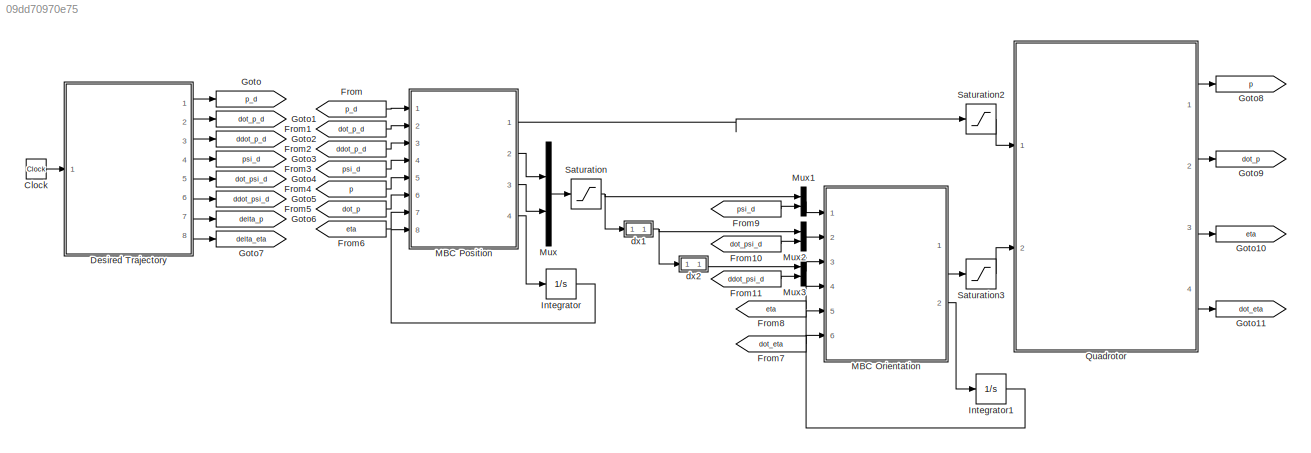
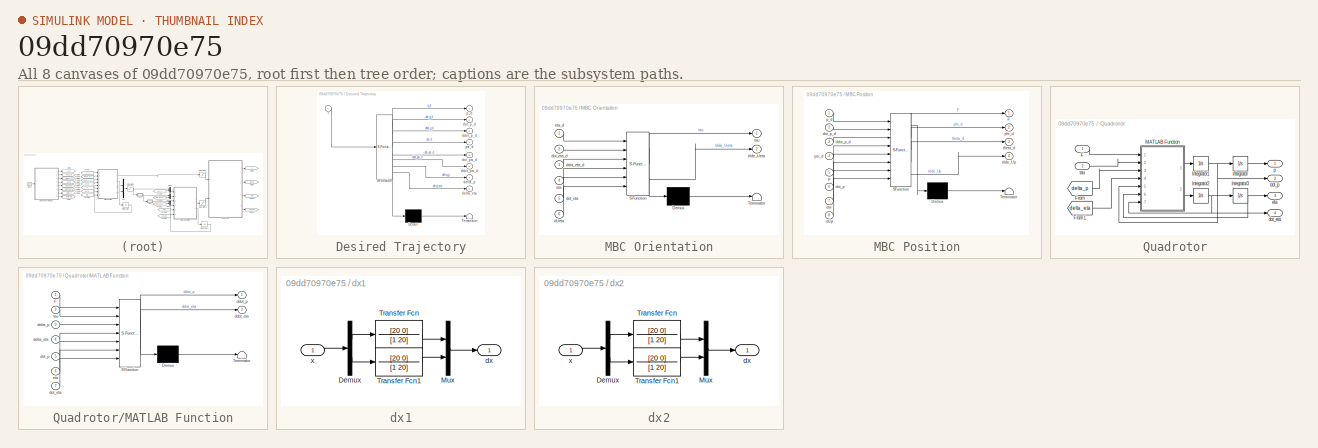
[diagram: thumbnail index - all 8 canvases of the model, root first then tree order]
MODEL slx_09dd70970e75
KIND model
CONFIG AbsTol = auto
CONFIG EnableMultiTasking = off
CONFIG FixedStep = 1e-3
CONFIG MaxStep = auto
CONFIG MinStep = auto
CONFIG RelTol = 1e-3
CONFIG SampleTimeConstraint = Unconstrained
CONFIG SolverName = ode4
CONFIG StartTime = 0.0
CONFIG StopTime = 100.0
BLOCK [Clock] Clock
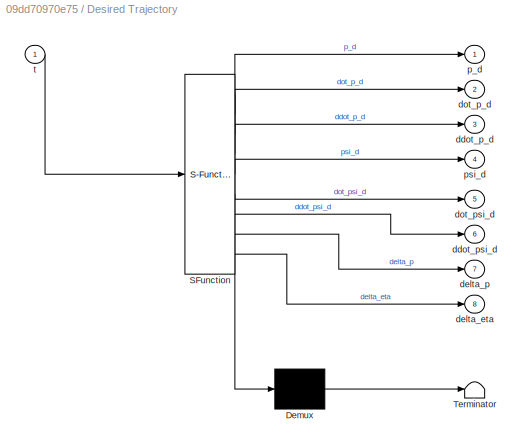
BLOCK [SubSystem] Desired Trajectory
  ErrorFcn = Stateflow.Translate.translate
  PermitHierarchicalResolution = ExplicitOnly
  Ports = [1, 8]
  RequestExecContextInheritance = off
  SFBlockType = MATLAB Function
  TreatAsAtomicUnit = on
BLOCK [Demux] Desired Trajectory/ Demux 
  Outputs = 1
  Ports = [1, 1]
BLOCK [S-Function] Desired Trajectory/ SFunction 
  EnableBusSupport = on
  FunctionName = sf_sfun
  PortCounts = [1 9]
  Ports = [1, 9]
  SFcnIsStateOwnerBlock = off
  SFunctionDeploymentMode = off
  Tag = Stateflow S-Function 4
BLOCK [Terminator] Desired Trajectory/ Terminator 
BLOCK [Outport] Desired Trajectory/ddot_p_d
  Port = 3
BLOCK [Outport] Desired Trajectory/ddot_psi_d
  Port = 6
BLOCK [Outport] Desired Trajectory/delta_eta
  Port = 8
BLOCK [Outport] Desired Trajectory/delta_p
  Port = 7
BLOCK [Outport] Desired Trajectory/dot_p_d
  Port = 2
BLOCK [Outport] Desired Trajectory/dot_psi_d
  Port = 5
BLOCK [Outport] Desired Trajectory/p_d
BLOCK [Outport] Desired Trajectory/psi_d
  Port = 4
BLOCK [Inport] Desired Trajectory/t
BLOCK [From] From
  GotoTag = p_d
  TagVisibility = global
BLOCK [From] From1
  GotoTag = dot_p_d
  TagVisibility = global
BLOCK [From] From10
  GotoTag = dot_psi_d
  TagVisibility = global
BLOCK [From] From11
  GotoTag = ddot_psi_d
  TagVisibility = global
BLOCK [From] From2
  GotoTag = ddot_p_d
  TagVisibility = global
BLOCK [From] From3
  GotoTag = psi_d
  TagVisibility = global
BLOCK [From] From4
  GotoTag = p
  TagVisibility = global
BLOCK [From] From5
  GotoTag = dot_p
  TagVisibility = global
BLOCK [From] From6
  GotoTag = eta
  TagVisibility = global
BLOCK [From] From7
  GotoTag = dot_eta
  TagVisibility = global
BLOCK [From] From8
  GotoTag = eta
  TagVisibility = global
BLOCK [From] From9
  GotoTag = psi_d
  TagVisibility = global
BLOCK [Goto] Goto
  GotoTag = p_d
  TagVisibility = global
BLOCK [Goto] Goto1
  GotoTag = dot_p_d
  TagVisibility = global
BLOCK [Goto] Goto10
  GotoTag = eta
  TagVisibility = global
BLOCK [Goto] Goto11
  GotoTag = dot_eta
  TagVisibility = global
BLOCK [Goto] Goto2
  GotoTag = ddot_p_d
  TagVisibility = global
BLOCK [Goto] Goto3
  GotoTag = psi_d
  TagVisibility = global
BLOCK [Goto] Goto4
  GotoTag = dot_psi_d
  TagVisibility = global
BLOCK [Goto] Goto5
  GotoTag = ddot_psi_d
  TagVisibility = global
BLOCK [Goto] Goto6
  GotoTag = delta_p
  TagVisibility = global
BLOCK [Goto] Goto7
  GotoTag = delta_eta
  TagVisibility = global
BLOCK [Goto] Goto8
  GotoTag = p
  TagVisibility = global
BLOCK [Goto] Goto9
  GotoTag = dot_p
  TagVisibility = global
BLOCK [Integrator] Integrator
  InitialCondition = [0;0;0]
  Ports = [1, 1]
BLOCK [Integrator] Integrator1
  InitialCondition = [0;0;0]
  Ports = [1, 1]
BLOCK [SubSystem] MBC Orientation
  ErrorFcn = Stateflow.Translate.translate
  PermitHierarchicalResolution = ExplicitOnly
  Ports = [6, 2]
  RequestExecContextInheritance = off
  SFBlockType = MATLAB Function
  TreatAsAtomicUnit = on
BLOCK [Demux] MBC Orientation/ Demux 
  Outputs = 1
  Ports = [1, 1]
BLOCK [S-Function] MBC Orientation/ SFunction 
  EnableBusSupport = on
  FunctionName = sf_sfun
  PortCounts = [6 3]
  Ports = [6, 3]
  SFcnIsStateOwnerBlock = off
  SFunctionDeploymentMode = off
  Tag = Stateflow S-Function 1
BLOCK [Terminator] MBC Orientation/ Terminator 
BLOCK [Inport] MBC Orientation/ddot_eta_d
  Port = 3
BLOCK [Inport] MBC Orientation/dot_eta
  Port = 5
BLOCK [Inport] MBC Orientation/dot_eta_d
  Port = 2
BLOCK [Inport] MBC Orientation/eta
  Port = 4
BLOCK [Inport] MBC Orientation/eta_d
BLOCK [Inport] MBC Orientation/itUeta
  Port = 6
BLOCK [Outport] MBC Orientation/tau
BLOCK [Outport] MBC Orientation/tilde_Ueta
  Port = 2
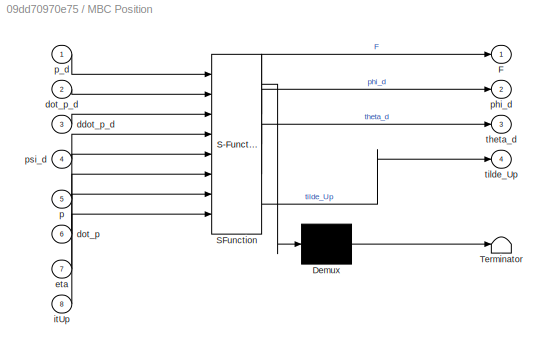
BLOCK [SubSystem] MBC Position
  ErrorFcn = Stateflow.Translate.translate
  PermitHierarchicalResolution = ExplicitOnly
  Ports = [8, 4]
  RequestExecContextInheritance = off
  SFBlockType = MATLAB Function
  TreatAsAtomicUnit = on
BLOCK [Demux] MBC Position/ Demux 
  Outputs = 1
  Ports = [1, 1]
BLOCK [S-Function] MBC Position/ SFunction 
  EnableBusSupport = on
  FunctionName = sf_sfun
  PortCounts = [8 5]
  Ports = [8, 5]
  SFcnIsStateOwnerBlock = off
  SFunctionDeploymentMode = off
  Tag = Stateflow S-Function 3
BLOCK [Terminator] MBC Position/ Terminator 
BLOCK [Outport] MBC Position/F
BLOCK [Inport] MBC Position/ddot_p_d
  Port = 3
BLOCK [Inport] MBC Position/dot_p
  Port = 6
BLOCK [Inport] MBC Position/dot_p_d
  Port = 2
BLOCK [Inport] MBC Position/eta
  Port = 7
BLOCK [Inport] MBC Position/itUp
  Port = 8
BLOCK [Inport] MBC Position/p
  Port = 5
BLOCK [Inport] MBC Position/p_d
BLOCK [Outport] MBC Position/phi_d
  Port = 2
BLOCK [Inport] MBC Position/psi_d
  Port = 4
BLOCK [Outport] MBC Position/theta_d
  Port = 3
BLOCK [Outport] MBC Position/tilde_Up
  Port = 4
BLOCK [Mux] Mux
  DisplayOption = bar
  Inputs = 2
  Ports = [2, 1]
BLOCK [Mux] Mux1
  DisplayOption = bar
  Inputs = 2
  Ports = [2, 1]
BLOCK [Mux] Mux2
  DisplayOption = bar
  Inputs = 2
  Ports = [2, 1]
BLOCK [Mux] Mux3
  DisplayOption = bar
  Inputs = 2
  Ports = [2, 1]
BLOCK [SubSystem] Quadrotor
  Ports = [2, 4]
  RequestExecContextInheritance = off
BLOCK [Inport] Quadrotor/F
BLOCK [From] Quadrotor/From
  GotoTag = delta_p
  TagVisibility = global
BLOCK [From] Quadrotor/From1
  GotoTag = delta_eta
  TagVisibility = global
BLOCK [Integrator] Quadrotor/Integrator
  InitialCondition = [0;0;0.3]
  LimitOutput = on
  LowerSaturationLimit = [-inf;-inf;0.3]
  Ports = [1, 1]
  UpperSaturationLimit = [inf;inf;inf]
BLOCK [Integrator] Quadrotor/Integrator1
  InitialCondition = [0;0;0]
  Ports = [1, 1]
BLOCK [Integrator] Quadrotor/Integrator2
  InitialCondition = [0;0;0]
  Ports = [1, 1]
BLOCK [Integrator] Quadrotor/Integrator3
  InitialCondition = [0;0;0]
  LimitOutput = on
  LowerSaturationLimit = [-pi/2; -pi/2; -inf]
  Ports = [1, 1]
  UpperSaturationLimit = [pi/2; pi/2; inf]
BLOCK [SubSystem] Quadrotor/MATLAB Function
  ErrorFcn = Stateflow.Translate.translate
  PermitHierarchicalResolution = ExplicitOnly
  Ports = [7, 2]
  RequestExecContextInheritance = off
  SFBlockType = MATLAB Function
  TreatAsAtomicUnit = on
BLOCK [Demux] Quadrotor/MATLAB Function/ Demux 
  Outputs = 1
  Ports = [1, 1]
BLOCK [S-Function] Quadrotor/MATLAB Function/ SFunction 
  EnableBusSupport = on
  FunctionName = sf_sfun
  PortCounts = [7 3]
  Ports = [7, 3]
  SFcnIsStateOwnerBlock = off
  SFunctionDeploymentMode = off
  Tag = Stateflow S-Function 2
BLOCK [Terminator] Quadrotor/MATLAB Function/ Terminator 
BLOCK [Inport] Quadrotor/MATLAB Function/F
BLOCK [Outport] Quadrotor/MATLAB Function/ddot_eta
  Port = 2
BLOCK [Outport] Quadrotor/MATLAB Function/ddot_p
BLOCK [Inport] Quadrotor/MATLAB Function/delta_eta
  Port = 4
BLOCK [Inport] Quadrotor/MATLAB Function/delta_p
  Port = 3
BLOCK [Inport] Quadrotor/MATLAB Function/dot_eta
  Port = 7
BLOCK [Inport] Quadrotor/MATLAB Function/dot_p
  Port = 5
BLOCK [Inport] Quadrotor/MATLAB Function/eta
  Port = 6
BLOCK [Inport] Quadrotor/MATLAB Function/tau
  Port = 2
BLOCK [Outport] Quadrotor/dot_eta
  Port = 4
BLOCK [Outport] Quadrotor/dot_p
  Port = 2
BLOCK [Outport] Quadrotor/eta
  Port = 3
BLOCK [Outport] Quadrotor/p
BLOCK [Inport] Quadrotor/tau
  Port = 2
BLOCK [Saturate] Saturation
  LowerLimit = -20*pi/180
  UpperLimit = 20*pi/180
BLOCK [Saturate] Saturation2
  LowerLimit = 0
  UpperLimit = 34.4
BLOCK [Saturate] Saturation3
  LowerLimit = -1.72
  UpperLimit = 1.72
BLOCK [SubSystem] dx1
  Ports = [1, 1]
  RequestExecContextInheritance = off
BLOCK [Demux] dx1/Demux
  Outputs = 2
  Ports = [1, 2]
BLOCK [Mux] dx1/Mux
  DisplayOption = bar
  Inputs = 2
  Ports = [2, 1]
BLOCK [TransferFcn] dx1/Transfer Fcn
  Denominator = [1 20]
  Numerator = [20 0]
BLOCK [TransferFcn] dx1/Transfer Fcn1
  Denominator = [1 20]
  Numerator = [20 0]
BLOCK [Outport] dx1/dx
BLOCK [Inport] dx1/x
  NameLocation = top
BLOCK [SubSystem] dx2
  Ports = [1, 1]
  RequestExecContextInheritance = off
BLOCK [Demux] dx2/Demux
  Outputs = 2
  Ports = [1, 2]
BLOCK [Mux] dx2/Mux
  DisplayOption = bar
  Inputs = 2
  Ports = [2, 1]
BLOCK [TransferFcn] dx2/Transfer Fcn
  Denominator = [1 20]
  Numerator = [20 0]
BLOCK [TransferFcn] dx2/Transfer Fcn1
  Denominator = [1 20]
  Numerator = [20 0]
BLOCK [Outport] dx2/dx
BLOCK [Inport] dx2/x
  NameLocation = top
LINE Clock:1 -> Desired Trajectory:1
LINE Desired Trajectory:1 -> Goto:1
LINE Desired Trajectory:2 -> Goto1:1
LINE Desired Trajectory:3 -> Goto2:1
LINE Desired Trajectory:4 -> Goto3:1
LINE Desired Trajectory:5 -> Goto4:1
LINE Desired Trajectory:6 -> Goto5:1
LINE Desired Trajectory:7 -> Goto6:1
LINE Desired Trajectory:8 -> Goto7:1
LINE From10:1 -> Mux2:2
LINE From11:1 -> Mux3:2
LINE From1:1 -> MBC Position:2
LINE From2:1 -> MBC Position:3
LINE From3:1 -> MBC Position:4
LINE From4:1 -> MBC Position:5
LINE From5:1 -> MBC Position:6
LINE From6:1 -> MBC Position:7
LINE From7:1 -> MBC Orientation:5
LINE From8:1 -> MBC Orientation:4
LINE From9:1 -> Mux1:2
LINE From:1 -> MBC Position:1
LINE Integrator1:1 -> MBC Orientation:6
LINE Integrator:1 -> MBC Position:8
LINE MBC Orientation:1 -> Saturation3:1
LINE MBC Orientation:2 -> Integrator1:1
LINE MBC Position:1 -> Saturation2:1
LINE MBC Position:2 -> Mux:1
LINE MBC Position:3 -> Mux:2
LINE MBC Position:4 -> Integrator:1
LINE Mux1:1 -> MBC Orientation:1
LINE Mux2:1 -> MBC Orientation:2
LINE Mux3:1 -> MBC Orientation:3
LINE Mux:1 -> Saturation:1
LINE Quadrotor/F:1 -> Quadrotor/MATLAB Function:1
LINE Quadrotor/From1:1 -> Quadrotor/MATLAB Function:4
LINE Quadrotor/From:1 -> Quadrotor/MATLAB Function:3
NET Quadrotor/Integrator1:1 -> Quadrotor/Integrator:1, Quadrotor/MATLAB Function:5, Quadrotor/dot_p:1
NET Quadrotor/Integrator2:1 -> Quadrotor/Integrator3:1, Quadrotor/MATLAB Function:7, Quadrotor/dot_eta:1
NET Quadrotor/Integrator3:1 -> Quadrotor/MATLAB Function:6, Quadrotor/eta:1
LINE Quadrotor/Integrator:1 -> Quadrotor/p:1
LINE Quadrotor/MATLAB Function:1 -> Quadrotor/Integrator1:1
LINE Quadrotor/MATLAB Function:2 -> Quadrotor/Integrator2:1
LINE Quadrotor/tau:1 -> Quadrotor/MATLAB Function:2
LINE Quadrotor:1 -> Goto8:1
LINE Quadrotor:2 -> Goto9:1
LINE Quadrotor:3 -> Goto10:1
LINE Quadrotor:4 -> Goto11:1
LINE Saturation2:1 -> Quadrotor:1
LINE Saturation3:1 -> Quadrotor:2
NET Saturation:1 -> Mux1:1, dx1:1
LINE dx1/Demux:1 -> dx1/Transfer Fcn:1
LINE dx1/Demux:2 -> dx1/Transfer Fcn1:1
LINE dx1/Mux:1 -> dx1/dx:1
LINE dx1/Transfer Fcn1:1 -> dx1/Mux:2
LINE dx1/Transfer Fcn:1 -> dx1/Mux:1
LINE dx1/x:1 -> dx1/Demux:1
NET dx1:1 -> Mux2:1, dx2:1
LINE dx2/Demux:1 -> dx2/Transfer Fcn:1
LINE dx2/Demux:2 -> dx2/Transfer Fcn1:1
LINE dx2/Mux:1 -> dx2/dx:1
LINE dx2/Transfer Fcn1:1 -> dx2/Mux:2
LINE dx2/Transfer Fcn:1 -> dx2/Mux:1
LINE dx2/x:1 -> dx2/Demux:1
LINE dx2:1 -> Mux3:1
note: NET lines group one-source signal fan-out (src -> all destinations, sorted); 1:1 wires keep LINE
CHART MBC Orientation states=1 transitions=1
  STATE_LABEL 'eML_blk_kernel()'
  STATE_LABEL 'SCRIPT:\nfunction [tau, tilde_Ueta] = fcn(eta_d, dot_eta_d, ddot_eta_d, eta, dot_eta, itUeta)\n\nphi     = eta(1);     theta = eta(2);\ndot_phi = dot_eta(1); dot_theta = dot_eta(2);\nIxx = 0.03; Iyy = 0.03; Izz = 0.04;\nd_phi = 0.002; d_theta = 0.002; d_psi = 0.004;\nI  = diag([Ixx Iyy Izz]);\nDn = diag([d_phi d_theta d_psi]);\n%% Gains\nK1eta = 2*diag([1 1 1]);\nK2eta = 0.001*diag([1 1 1]);\nK3eta = 5*diag([...<+1191ch>'
CHART Quadrotor/MATLAB Function states=1 transitions=1
  STATE_LABEL 'eML_blk_kernel()'
  STATE_LABEL 'SCRIPT:\nfunction [ddot_p, ddot_eta] = fcn(F, tau, delta_p, delta_eta, dot_p, eta, dot_eta)\n\nm  = 1.79;\ng  = 9.81;\nIxx = 0.03; Iyy = 0.03; Izz = 0.04;\ndx = 0.002; dy = 0.002; dz = 0.004;\nd_phi = 0.002; d_theta = 0.002; d_psi = 0.004;\nI  = diag([Ixx Iyy Izz]);\nDp = diag([dx dy dz]);\nDn = diag([d_phi d_theta d_psi]);\nVz = [0; 0; 1];\n\nphi     = eta(1);     theta     = eta(2);     psi = eta(3);\ndot_phi...<+1439ch>'
CHART MBC Position states=1 transitions=1
  STATE_LABEL 'eML_blk_kernel()'
  STATE_LABEL 'SCRIPT:\nfunction [F, phi_d, theta_d, tilde_Up] = fcn(p_d, dot_p_d, ddot_p_d, psi_d, p, dot_p, eta, itUp)\nm  = 0.7*1.79;\ng  = 9.81;\ngz = [0; 0; g];\ndx = 0.002; dy = 0.002; dz = 0.004;\nDp = diag([dx dy dz]);\nphi = eta(1) ; theta = eta(2);\n\ne_p     = p_d - p;\ndot_e_p = dot_p_d - dot_p;\n%% Position Controller\n%Gains\nK1p = diag([0.75 0.75 10]); \nK2p = diag([0.004 0.004 1]);\nK3p = diag([1.75 1.75 12]);\n...<+334ch>'
CHART Desired Trajectory states=1 transitions=1
  STATE_LABEL 'eML_blk_kernel()'
  STATE_LABEL 'SCRIPT:\nfunction [p_d, dot_p_d, ddot_p_d, psi_d, dot_psi_d, ddot_psi_d, delta_p, delta_eta] = fcn(t)\nz0    = 0.3;\nh     = 1.4;\n%% Circunferencia\n% ampx = 1;\n% ampy = 1;\n% ampz = 0.1;\n% amps = 10*pi/180;\n% frecx = 2*pi/5;\n% frecy = 2*pi/5;\n% frecz = 2*pi/5;\n% frecs = 2*pi/5;\n\n%% Lemniscata 1\n% \n% ampx = 0.5;\n% ampy = 1;\n% ampz = 0.4;\n% amps = 5*pi/180;\n% frecx = 2*pi/4;\n% frecy = 2*pi/8;\n% frecz = ...<+1974ch>'
CHART  states=0 transitions=0
CHART  states=0 transitions=0
CHART  states=0 transitions=0
CHART  states=0 transitions=0
